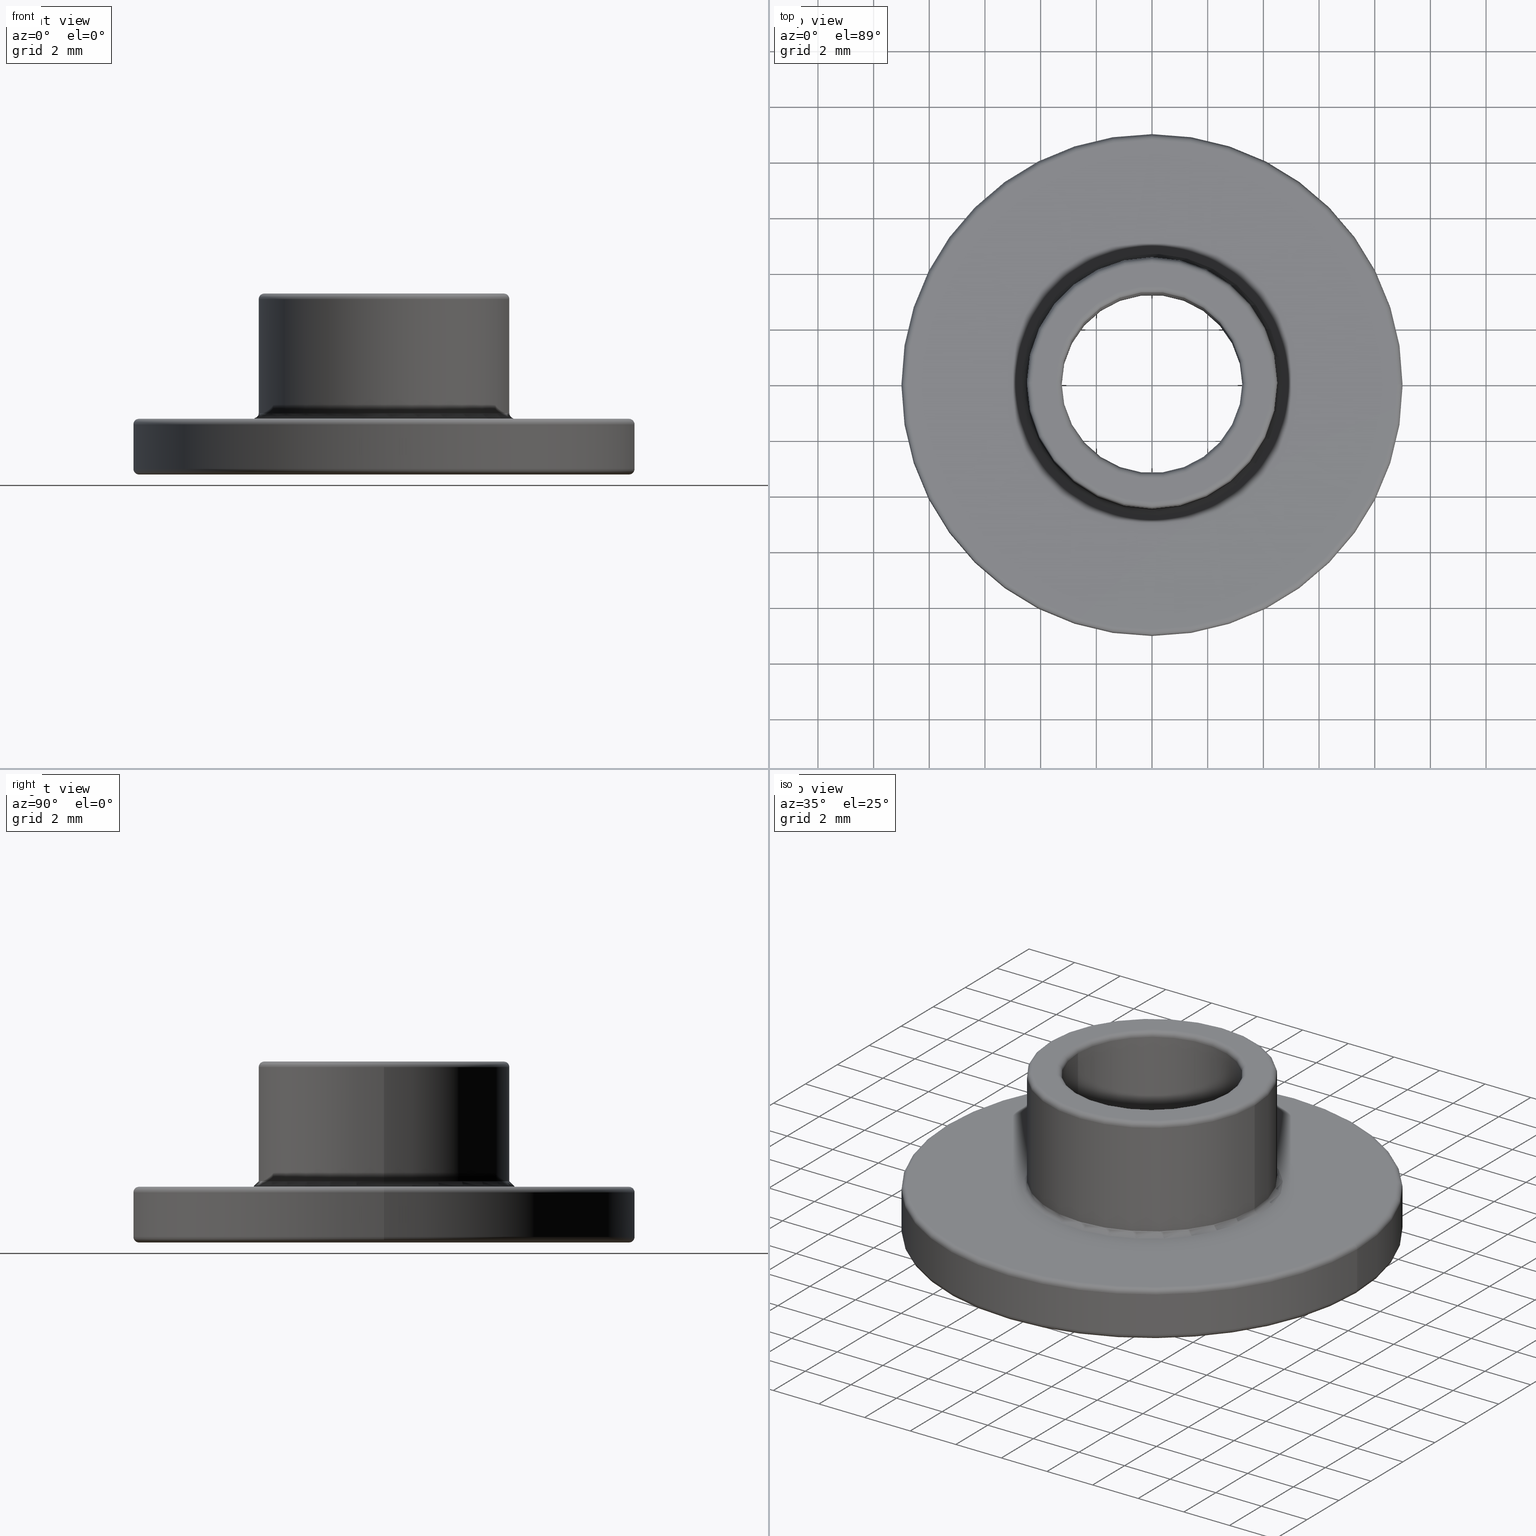
[diagram: canonical four-view strip — front | top / right | iso, engineering-drawing reading convention]
A machine part, canonical four-view strip (front | top / right | iso — engineering-drawing reading convention). The complete STEP part file that produces these views, byte-faithful:
ISO-10303-21;
HEADER;
/* Generated by software containing ST-Developer
 * from STEP Tools, Inc. (www.steptools.com) 
 */

FILE_DESCRIPTION(
/* description */ ('TAPPO 0x0x0 INOX '),
/* implementation_level */ '2;1');

FILE_NAME(
/* name */ 
'Q:\\Catalogo\\3_Profili e accessori MACAP\\Per Download Web e catalog
o artaceo\\ACCESSORI\\PAGINA 48 NEW\\DTPXX0000022 - XT90150.stp',
/* time_stamp */ '2019-12-16T16:38:49+01:00',
/* author */ ('fzagni'),
/* organization */ (''),
/* preprocessor_version */ 'ST-DEVELOPER v17.2',
/* originating_system */ 'Autodesk Inventor 2019',
/* authorisation */ '');

FILE_SCHEMA (('AUTOMOTIVE_DESIGN { 1 0 10303 214 3 1 1 }'));
ENDSEC;

DATA;
#10=MECHANICAL_DESIGN_GEOMETRIC_PRESENTATION_REPRESENTATION('',(#13),#362);
#11=SHAPE_REPRESENTATION_RELATIONSHIP('SRR','None',#369,#12);
#12=ADVANCED_BREP_SHAPE_REPRESENTATION('',(#14),#361);
#13=STYLED_ITEM('',(#378),#14);
#14=MANIFOLD_SOLID_BREP('Solido1',#183);
#15=LINE('',#322,#18);
#16=LINE('',#333,#19);
#17=LINE('',#344,#20);
#18=VECTOR('',#256,3.25);
#19=VECTOR('',#269,4.5);
#20=VECTOR('',#284,9.);
#21=CYLINDRICAL_SURFACE('',#209,3.25);
#22=CYLINDRICAL_SURFACE('',#216,4.5);
#23=CYLINDRICAL_SURFACE('',#224,9.);
#24=FACE_BOUND('',#44,.T.);
#25=FACE_BOUND('',#49,.T.);
#26=FACE_BOUND('',#54,.T.);
#27=PLANE('',#207);
#28=PLANE('',#219);
#29=PLANE('',#229);
#30=FACE_OUTER_BOUND('',#42,.T.);
#31=FACE_OUTER_BOUND('',#43,.T.);
#32=FACE_OUTER_BOUND('',#45,.T.);
#33=FACE_OUTER_BOUND('',#46,.T.);
#34=FACE_OUTER_BOUND('',#47,.T.);
#35=FACE_OUTER_BOUND('',#48,.T.);
#36=FACE_OUTER_BOUND('',#50,.T.);
#37=FACE_OUTER_BOUND('',#51,.T.);
#38=FACE_OUTER_BOUND('',#52,.T.);
#39=FACE_OUTER_BOUND('',#53,.T.);
#40=FACE_OUTER_BOUND('',#55,.T.);
#41=FACE_OUTER_BOUND('',#56,.T.);
#42=EDGE_LOOP('',(#117,#118,#119,#120));
#43=EDGE_LOOP('',(#121));
#44=EDGE_LOOP('',(#122));
#45=EDGE_LOOP('',(#123,#124,#125,#126,#127));
#46=EDGE_LOOP('',(#128,#129,#130,#131));
#47=EDGE_LOOP('',(#132,#133,#134,#135,#136));
#48=EDGE_LOOP('',(#137));
#49=EDGE_LOOP('',(#138));
#50=EDGE_LOOP('',(#139,#140,#141,#142));
#51=EDGE_LOOP('',(#143,#144,#145,#146));
#52=EDGE_LOOP('',(#147,#148,#149,#150,#151));
#53=EDGE_LOOP('',(#152,#153));
#54=EDGE_LOOP('',(#154));
#55=EDGE_LOOP('',(#155,#156,#157,#158,#159,#160));
#56=EDGE_LOOP('',(#161,#162,#163,#164));
#57=CIRCLE('',#204,3.45);
#58=CIRCLE('',#205,0.2);
#59=CIRCLE('',#206,3.25);
#60=CIRCLE('',#208,8.8);
#61=CIRCLE('',#210,3.25);
#62=CIRCLE('',#211,3.25);
#63=CIRCLE('',#213,4.5);
#64=CIRCLE('',#214,0.2);
#65=CIRCLE('',#215,4.7);
#66=CIRCLE('',#217,4.5);
#67=CIRCLE('',#218,4.5);
#68=CIRCLE('',#220,8.8);
#69=CIRCLE('',#222,0.2);
#70=CIRCLE('',#223,9.);
#71=CIRCLE('',#225,9.);
#72=CIRCLE('',#227,3.45);
#73=CIRCLE('',#228,0.2);
#74=CIRCLE('',#230,4.3);
#75=CIRCLE('',#231,4.3);
#76=CIRCLE('',#233,0.2);
#77=CIRCLE('',#235,0.2);
#78=VERTEX_POINT('',#309);
#79=VERTEX_POINT('',#311);
#80=VERTEX_POINT('',#315);
#81=VERTEX_POINT('',#318);
#82=VERTEX_POINT('',#319);
#83=VERTEX_POINT('',#324);
#84=VERTEX_POINT('',#326);
#85=VERTEX_POINT('',#330);
#86=VERTEX_POINT('',#331);
#87=VERTEX_POINT('',#336);
#88=VERTEX_POINT('',#339);
#89=VERTEX_POINT('',#343);
#90=VERTEX_POINT('',#347);
#91=VERTEX_POINT('',#351);
#92=VERTEX_POINT('',#352);
#93=EDGE_CURVE('',#78,#78,#57,.T.);
#94=EDGE_CURVE('',#78,#79,#58,.T.);
#95=EDGE_CURVE('',#79,#79,#59,.T.);
#96=EDGE_CURVE('',#80,#80,#60,.T.);
#97=EDGE_CURVE('',#81,#82,#61,.T.);
#98=EDGE_CURVE('',#82,#81,#62,.T.);
#99=EDGE_CURVE('',#82,#79,#15,.T.);
#100=EDGE_CURVE('',#83,#83,#63,.T.);
#101=EDGE_CURVE('',#83,#84,#64,.T.);
#102=EDGE_CURVE('',#84,#84,#65,.T.);
#103=EDGE_CURVE('',#85,#86,#66,.T.);
#104=EDGE_CURVE('',#85,#83,#16,.T.);
#105=EDGE_CURVE('',#86,#85,#67,.T.);
#106=EDGE_CURVE('',#87,#87,#68,.T.);
#107=EDGE_CURVE('',#80,#88,#69,.T.);
#108=EDGE_CURVE('',#88,#88,#70,.T.);
#109=EDGE_CURVE('',#88,#89,#17,.T.);
#110=EDGE_CURVE('',#89,#89,#71,.T.);
#111=EDGE_CURVE('',#90,#90,#72,.T.);
#112=EDGE_CURVE('',#90,#81,#73,.T.);
#113=EDGE_CURVE('',#91,#92,#74,.T.);
#114=EDGE_CURVE('',#92,#91,#75,.T.);
#115=EDGE_CURVE('',#92,#86,#76,.T.);
#116=EDGE_CURVE('',#89,#87,#77,.T.);
#117=ORIENTED_EDGE('',*,*,#93,.T.);
#118=ORIENTED_EDGE('',*,*,#94,.T.);
#119=ORIENTED_EDGE('',*,*,#95,.T.);
#120=ORIENTED_EDGE('',*,*,#94,.F.);
#121=ORIENTED_EDGE('',*,*,#96,.F.);
#122=ORIENTED_EDGE('',*,*,#93,.F.);
#123=ORIENTED_EDGE('',*,*,#97,.F.);
#124=ORIENTED_EDGE('',*,*,#98,.F.);
#125=ORIENTED_EDGE('',*,*,#99,.T.);
#126=ORIENTED_EDGE('',*,*,#95,.F.);
#127=ORIENTED_EDGE('',*,*,#99,.F.);
#128=ORIENTED_EDGE('',*,*,#100,.T.);
#129=ORIENTED_EDGE('',*,*,#101,.T.);
#130=ORIENTED_EDGE('',*,*,#102,.T.);
#131=ORIENTED_EDGE('',*,*,#101,.F.);
#132=ORIENTED_EDGE('',*,*,#103,.F.);
#133=ORIENTED_EDGE('',*,*,#104,.T.);
#134=ORIENTED_EDGE('',*,*,#100,.F.);
#135=ORIENTED_EDGE('',*,*,#104,.F.);
#136=ORIENTED_EDGE('',*,*,#105,.F.);
#137=ORIENTED_EDGE('',*,*,#106,.F.);
#138=ORIENTED_EDGE('',*,*,#102,.F.);
#139=ORIENTED_EDGE('',*,*,#96,.T.);
#140=ORIENTED_EDGE('',*,*,#107,.T.);
#141=ORIENTED_EDGE('',*,*,#108,.T.);
#142=ORIENTED_EDGE('',*,*,#107,.F.);
#143=ORIENTED_EDGE('',*,*,#108,.F.);
#144=ORIENTED_EDGE('',*,*,#109,.T.);
#145=ORIENTED_EDGE('',*,*,#110,.F.);
#146=ORIENTED_EDGE('',*,*,#109,.F.);
#147=ORIENTED_EDGE('',*,*,#111,.T.);
#148=ORIENTED_EDGE('',*,*,#112,.T.);
#149=ORIENTED_EDGE('',*,*,#97,.T.);
#150=ORIENTED_EDGE('',*,*,#98,.T.);
#151=ORIENTED_EDGE('',*,*,#112,.F.);
#152=ORIENTED_EDGE('',*,*,#113,.F.);
#153=ORIENTED_EDGE('',*,*,#114,.F.);
#154=ORIENTED_EDGE('',*,*,#111,.F.);
#155=ORIENTED_EDGE('',*,*,#113,.T.);
#156=ORIENTED_EDGE('',*,*,#115,.T.);
#157=ORIENTED_EDGE('',*,*,#105,.T.);
#158=ORIENTED_EDGE('',*,*,#103,.T.);
#159=ORIENTED_EDGE('',*,*,#115,.F.);
#160=ORIENTED_EDGE('',*,*,#114,.T.);
#161=ORIENTED_EDGE('',*,*,#110,.T.);
#162=ORIENTED_EDGE('',*,*,#116,.T.);
#163=ORIENTED_EDGE('',*,*,#106,.T.);
#164=ORIENTED_EDGE('',*,*,#116,.F.);
#165=TOROIDAL_SURFACE('',#203,3.45,0.2);
#166=TOROIDAL_SURFACE('',#212,4.7,0.2);
#167=TOROIDAL_SURFACE('',#221,8.8,0.2);
#168=TOROIDAL_SURFACE('',#226,3.45,0.2);
#169=TOROIDAL_SURFACE('',#232,4.3,0.2);
#170=TOROIDAL_SURFACE('',#234,8.8,0.2);
#171=ADVANCED_FACE('',(#30),#165,.T.);
#172=ADVANCED_FACE('',(#31,#24),#27,.F.);
#173=ADVANCED_FACE('',(#32),#21,.F.);
#174=ADVANCED_FACE('',(#33),#166,.F.);
#175=ADVANCED_FACE('',(#34),#22,.T.);
#176=ADVANCED_FACE('',(#35,#25),#28,.T.);
#177=ADVANCED_FACE('',(#36),#167,.T.);
#178=ADVANCED_FACE('',(#37),#23,.T.);
#179=ADVANCED_FACE('',(#38),#168,.T.);
#180=ADVANCED_FACE('',(#39,#26),#29,.T.);
#181=ADVANCED_FACE('',(#40),#169,.T.);
#182=ADVANCED_FACE('',(#41),#170,.T.);
#183=CLOSED_SHELL('',(#171,#172,#173,#174,#175,#176,#177,#178,#179,#180,
#181,#182));
#184=DERIVED_UNIT_ELEMENT(#186,1.);
#185=DERIVED_UNIT_ELEMENT(#364,3.);
#186=(
MASS_UNIT()
NAMED_UNIT(*)
SI_UNIT($,.GRAM.)
);
#187=DERIVED_UNIT((#184,#185));
#188=MEASURE_REPRESENTATION_ITEM('density measure',
POSITIVE_RATIO_MEASURE(8.08),#187);
#189=PROPERTY_DEFINITION_REPRESENTATION(#194,#191);
#190=PROPERTY_DEFINITION_REPRESENTATION(#195,#192);
#191=REPRESENTATION('material name',(#193),#361);
#192=REPRESENTATION('density',(#188),#361);
#193=DESCRIPTIVE_REPRESENTATION_ITEM('Acciaio Inox AISI304',
'Acciaio Inox AISI304');
#194=PROPERTY_DEFINITION('material property','material name',#371);
#195=PROPERTY_DEFINITION('material property','density of part',#371);
#196=DATE_TIME_ROLE('creation_date');
#197=APPLIED_DATE_AND_TIME_ASSIGNMENT(#198,#196,(#371));
#198=DATE_AND_TIME(#199,#200);
#199=CALENDAR_DATE(2014,27,3);
#200=LOCAL_TIME(23,0,0.,#201);
#201=COORDINATED_UNIVERSAL_TIME_OFFSET(0,0,.BEHIND.);
#202=AXIS2_PLACEMENT_3D('placement',#307,#236,#237);
#203=AXIS2_PLACEMENT_3D('',#308,#238,#239);
#204=AXIS2_PLACEMENT_3D('',#310,#240,#241);
#205=AXIS2_PLACEMENT_3D('',#312,#242,#243);
#206=AXIS2_PLACEMENT_3D('',#313,#244,#245);
#207=AXIS2_PLACEMENT_3D('',#314,#246,#247);
#208=AXIS2_PLACEMENT_3D('',#316,#248,#249);
#209=AXIS2_PLACEMENT_3D('',#317,#250,#251);
#210=AXIS2_PLACEMENT_3D('',#320,#252,#253);
#211=AXIS2_PLACEMENT_3D('',#321,#254,#255);
#212=AXIS2_PLACEMENT_3D('',#323,#257,#258);
#213=AXIS2_PLACEMENT_3D('',#325,#259,#260);
#214=AXIS2_PLACEMENT_3D('',#327,#261,#262);
#215=AXIS2_PLACEMENT_3D('',#328,#263,#264);
#216=AXIS2_PLACEMENT_3D('',#329,#265,#266);
#217=AXIS2_PLACEMENT_3D('',#332,#267,#268);
#218=AXIS2_PLACEMENT_3D('',#334,#270,#271);
#219=AXIS2_PLACEMENT_3D('',#335,#272,#273);
#220=AXIS2_PLACEMENT_3D('',#337,#274,#275);
#221=AXIS2_PLACEMENT_3D('',#338,#276,#277);
#222=AXIS2_PLACEMENT_3D('',#340,#278,#279);
#223=AXIS2_PLACEMENT_3D('',#341,#280,#281);
#224=AXIS2_PLACEMENT_3D('',#342,#282,#283);
#225=AXIS2_PLACEMENT_3D('',#345,#285,#286);
#226=AXIS2_PLACEMENT_3D('',#346,#287,#288);
#227=AXIS2_PLACEMENT_3D('',#348,#289,#290);
#228=AXIS2_PLACEMENT_3D('',#349,#291,#292);
#229=AXIS2_PLACEMENT_3D('',#350,#293,#294);
#230=AXIS2_PLACEMENT_3D('',#353,#295,#296);
#231=AXIS2_PLACEMENT_3D('',#354,#297,#298);
#232=AXIS2_PLACEMENT_3D('',#355,#299,#300);
#233=AXIS2_PLACEMENT_3D('',#356,#301,#302);
#234=AXIS2_PLACEMENT_3D('',#357,#303,#304);
#235=AXIS2_PLACEMENT_3D('',#358,#305,#306);
#236=DIRECTION('axis',(0.,0.,1.));
#237=DIRECTION('refdir',(1.,0.,0.));
#238=DIRECTION('center_axis',(0.,0.,1.));
#239=DIRECTION('ref_axis',(1.,0.,0.));
#240=DIRECTION('center_axis',(0.,0.,-1.));
#241=DIRECTION('ref_axis',(1.,0.,0.));
#242=DIRECTION('center_axis',(1.22464679914735E-16,-1.,0.));
#243=DIRECTION('ref_axis',(-1.,-1.22464679914735E-16,0.));
#244=DIRECTION('center_axis',(0.,0.,1.));
#245=DIRECTION('ref_axis',(1.,0.,0.));
#246=DIRECTION('center_axis',(0.,0.,1.));
#247=DIRECTION('ref_axis',(1.,0.,0.));
#248=DIRECTION('center_axis',(0.,0.,1.));
#249=DIRECTION('ref_axis',(-1.,0.,0.));
#250=DIRECTION('center_axis',(0.,0.,1.));
#251=DIRECTION('ref_axis',(1.,0.,0.));
#252=DIRECTION('center_axis',(0.,0.,-1.));
#253=DIRECTION('ref_axis',(-1.,-1.22464679914735E-16,0.));
#254=DIRECTION('center_axis',(0.,0.,-1.));
#255=DIRECTION('ref_axis',(-1.,-1.22464679914735E-16,0.));
#256=DIRECTION('',(0.,0.,-1.));
#257=DIRECTION('center_axis',(0.,0.,-1.));
#258=DIRECTION('ref_axis',(-1.,0.,0.));
#259=DIRECTION('center_axis',(0.,0.,-1.));
#260=DIRECTION('ref_axis',(-1.,0.,0.));
#261=DIRECTION('center_axis',(-1.22464679914735E-16,-1.,0.));
#262=DIRECTION('ref_axis',(1.,-1.22464679914735E-16,0.));
#263=DIRECTION('center_axis',(0.,0.,1.));
#264=DIRECTION('ref_axis',(-1.,0.,0.));
#265=DIRECTION('center_axis',(0.,0.,1.));
#266=DIRECTION('ref_axis',(-1.,0.,0.));
#267=DIRECTION('center_axis',(0.,0.,1.));
#268=DIRECTION('ref_axis',(-1.,0.,0.));
#269=DIRECTION('',(0.,0.,-1.));
#270=DIRECTION('center_axis',(0.,0.,1.));
#271=DIRECTION('ref_axis',(-1.,0.,0.));
#272=DIRECTION('center_axis',(0.,0.,1.));
#273=DIRECTION('ref_axis',(1.,0.,0.));
#274=DIRECTION('center_axis',(0.,0.,-1.));
#275=DIRECTION('ref_axis',(-1.,0.,0.));
#276=DIRECTION('center_axis',(0.,0.,-1.));
#277=DIRECTION('ref_axis',(-1.,0.,0.));
#278=DIRECTION('center_axis',(-1.22464679914735E-16,-1.,0.));
#279=DIRECTION('ref_axis',(1.,-1.22464679914735E-16,0.));
#280=DIRECTION('center_axis',(0.,0.,-1.));
#281=DIRECTION('ref_axis',(-1.,0.,0.));
#282=DIRECTION('center_axis',(0.,0.,-1.));
#283=DIRECTION('ref_axis',(-1.,0.,0.));
#284=DIRECTION('',(0.,0.,1.));
#285=DIRECTION('center_axis',(0.,0.,1.));
#286=DIRECTION('ref_axis',(-1.,0.,0.));
#287=DIRECTION('center_axis',(0.,0.,-1.));
#288=DIRECTION('ref_axis',(-1.,0.,0.));
#289=DIRECTION('center_axis',(0.,0.,1.));
#290=DIRECTION('ref_axis',(-1.,-1.22464679914735E-16,0.));
#291=DIRECTION('center_axis',(-1.22464679914735E-16,-1.,0.));
#292=DIRECTION('ref_axis',(1.,-1.22464679914735E-16,0.));
#293=DIRECTION('center_axis',(0.,0.,1.));
#294=DIRECTION('ref_axis',(1.,0.,0.));
#295=DIRECTION('center_axis',(0.,0.,-1.));
#296=DIRECTION('ref_axis',(-1.,0.,0.));
#297=DIRECTION('center_axis',(0.,0.,-1.));
#298=DIRECTION('ref_axis',(-1.,0.,0.));
#299=DIRECTION('center_axis',(0.,0.,1.));
#300=DIRECTION('ref_axis',(1.,0.,0.));
#301=DIRECTION('center_axis',(1.22464679914735E-16,-1.,0.));
#302=DIRECTION('ref_axis',(-1.,-1.22464679914735E-16,0.));
#303=DIRECTION('center_axis',(0.,0.,-1.));
#304=DIRECTION('ref_axis',(-1.,0.,0.));
#305=DIRECTION('center_axis',(-1.22464679914735E-16,-1.,0.));
#306=DIRECTION('ref_axis',(1.,-1.22464679914735E-16,0.));
#307=CARTESIAN_POINT('',(0.,0.,0.));
#308=CARTESIAN_POINT('Origin',(0.,0.,-1.8));
#309=CARTESIAN_POINT('',(-3.45,4.22503145705837E-16,-2.));
#310=CARTESIAN_POINT('Origin',(0.,0.,-2.));
#311=CARTESIAN_POINT('',(-3.25,-3.9801020972289E-16,-1.8));
#312=CARTESIAN_POINT('Origin',(-3.45,-4.22503145705837E-16,-1.8));
#313=CARTESIAN_POINT('Origin',(0.,0.,-1.8));
#314=CARTESIAN_POINT('Origin',(-5.03042222760184E-16,2.05596856412066E-16,
-2.));
#315=CARTESIAN_POINT('',(8.8,1.07768918324967E-15,-2.));
#316=CARTESIAN_POINT('Origin',(0.,0.,-2.));
#317=CARTESIAN_POINT('Origin',(0.,0.,-21.7726093108393));
#318=CARTESIAN_POINT('',(3.25,0.,4.3));
#319=CARTESIAN_POINT('',(-3.25,-3.9801020972289E-16,4.3));
#320=CARTESIAN_POINT('Origin',(0.,0.,4.3));
#321=CARTESIAN_POINT('Origin',(0.,0.,4.3));
#322=CARTESIAN_POINT('',(-3.25,-3.9801020972289E-16,-21.7726093108393));
#323=CARTESIAN_POINT('Origin',(0.,0.,0.2));
#324=CARTESIAN_POINT('',(4.5,-5.51091059616309E-16,0.2));
#325=CARTESIAN_POINT('Origin',(0.,0.,0.2));
#326=CARTESIAN_POINT('',(4.7,5.75583995599256E-16,0.));
#327=CARTESIAN_POINT('Origin',(4.7,-5.75583995599256E-16,0.2));
#328=CARTESIAN_POINT('Origin',(0.,0.,0.));
#329=CARTESIAN_POINT('Origin',(0.,0.,0.));
#330=CARTESIAN_POINT('',(4.5,5.51091059616309E-16,4.3));
#331=CARTESIAN_POINT('',(-4.5,-5.51091059616309E-16,4.3));
#332=CARTESIAN_POINT('Origin',(0.,0.,4.3));
#333=CARTESIAN_POINT('',(4.5,5.51091059616309E-16,0.));
#334=CARTESIAN_POINT('Origin',(0.,0.,4.3));
#335=CARTESIAN_POINT('Origin',(-5.03042222760184E-16,2.05596856412066E-16,
0.));
#336=CARTESIAN_POINT('',(8.8,-1.07768918324967E-15,0.));
#337=CARTESIAN_POINT('Origin',(0.,0.,0.));
#338=CARTESIAN_POINT('Origin',(0.,0.,-1.8));
#339=CARTESIAN_POINT('',(9.,-1.10218211923262E-15,-1.8));
#340=CARTESIAN_POINT('Origin',(8.8,-1.07768918324967E-15,-1.8));
#341=CARTESIAN_POINT('Origin',(0.,0.,-1.8));
#342=CARTESIAN_POINT('Origin',(0.,0.,0.));
#343=CARTESIAN_POINT('',(9.,1.10218211923262E-15,-0.2));
#344=CARTESIAN_POINT('',(9.,-1.10218211923262E-15,0.));
#345=CARTESIAN_POINT('Origin',(0.,0.,-0.2));
#346=CARTESIAN_POINT('Origin',(0.,0.,4.3));
#347=CARTESIAN_POINT('',(3.45,8.45006291411674E-16,4.5));
#348=CARTESIAN_POINT('Origin',(0.,0.,4.5));
#349=CARTESIAN_POINT('Origin',(3.45,-4.22503145705837E-16,4.3));
#350=CARTESIAN_POINT('Origin',(-2.51521111380092E-16,1.02798428206033E-16,
4.5));
#351=CARTESIAN_POINT('',(4.3,-5.26598123633362E-16,4.5));
#352=CARTESIAN_POINT('',(-4.3,-5.26598123633362E-16,4.5));
#353=CARTESIAN_POINT('Origin',(0.,0.,4.5));
#354=CARTESIAN_POINT('Origin',(0.,0.,4.5));
#355=CARTESIAN_POINT('Origin',(0.,0.,4.3));
#356=CARTESIAN_POINT('Origin',(-4.3,-5.26598123633362E-16,4.3));
#357=CARTESIAN_POINT('Origin',(0.,0.,-0.2));
#358=CARTESIAN_POINT('Origin',(8.8,-1.07768918324967E-15,-0.2));
#359=UNCERTAINTY_MEASURE_WITH_UNIT(LENGTH_MEASURE(0.01),#363,
'DISTANCE_ACCURACY_VALUE',
'Maximum model space distance between geometric entities at asserted c
onnectivities');
#360=UNCERTAINTY_MEASURE_WITH_UNIT(LENGTH_MEASURE(0.01),#363,
'DISTANCE_ACCURACY_VALUE',
'Maximum model space distance between geometric entities at asserted c
onnectivities');
#361=(
GEOMETRIC_REPRESENTATION_CONTEXT(3)
GLOBAL_UNCERTAINTY_ASSIGNED_CONTEXT((#359))
GLOBAL_UNIT_ASSIGNED_CONTEXT((#363,#365,#366))
REPRESENTATION_CONTEXT('','3D')
);
#362=(
GEOMETRIC_REPRESENTATION_CONTEXT(3)
GLOBAL_UNCERTAINTY_ASSIGNED_CONTEXT((#360))
GLOBAL_UNIT_ASSIGNED_CONTEXT((#363,#365,#366))
REPRESENTATION_CONTEXT('','3D')
);
#363=(
LENGTH_UNIT()
NAMED_UNIT(*)
SI_UNIT(.MILLI.,.METRE.)
);
#364=(
LENGTH_UNIT()
NAMED_UNIT(*)
SI_UNIT(.CENTI.,.METRE.)
);
#365=(
NAMED_UNIT(*)
PLANE_ANGLE_UNIT()
SI_UNIT($,.RADIAN.)
);
#366=(
NAMED_UNIT(*)
SI_UNIT($,.STERADIAN.)
SOLID_ANGLE_UNIT()
);
#367=SHAPE_DEFINITION_REPRESENTATION(#368,#369);
#368=PRODUCT_DEFINITION_SHAPE('',$,#371);
#369=SHAPE_REPRESENTATION('',(#202),#361);
#370=PRODUCT_DEFINITION_CONTEXT('part definition',#375,'design');
#371=PRODUCT_DEFINITION('DTPXX0000022','DTPXX0000022',#372,#370);
#372=PRODUCT_DEFINITION_FORMATION('A',$,#377);
#373=PRODUCT_RELATED_PRODUCT_CATEGORY('DTPXX0000022','DTPXX0000022',(#377));
#374=APPLICATION_PROTOCOL_DEFINITION('international standard',
'automotive_design',2009,#375);
#375=APPLICATION_CONTEXT(
'Core Data for Automotive Mechanical Design Process');
#376=PRODUCT_CONTEXT('part definition',#375,'mechanical');
#377=PRODUCT('DTPXX0000022','DTPXX0000022','TAPPO 0x0x0 INOX ',(#376));
#378=PRESENTATION_STYLE_ASSIGNMENT((#379));
#379=SURFACE_STYLE_USAGE(.BOTH.,#382);
#380=SURFACE_STYLE_RENDERING_WITH_PROPERTIES($,#386,(#381));
#381=SURFACE_STYLE_TRANSPARENT(0.);
#382=SURFACE_SIDE_STYLE('',(#383,#380));
#383=SURFACE_STYLE_FILL_AREA(#384);
#384=FILL_AREA_STYLE('',(#385));
#385=FILL_AREA_STYLE_COLOUR('',#386);
#386=COLOUR_RGB('',0.745098039215686,0.737254901960784,0.729411764705882);
ENDSEC;
END-ISO-10303-21;
